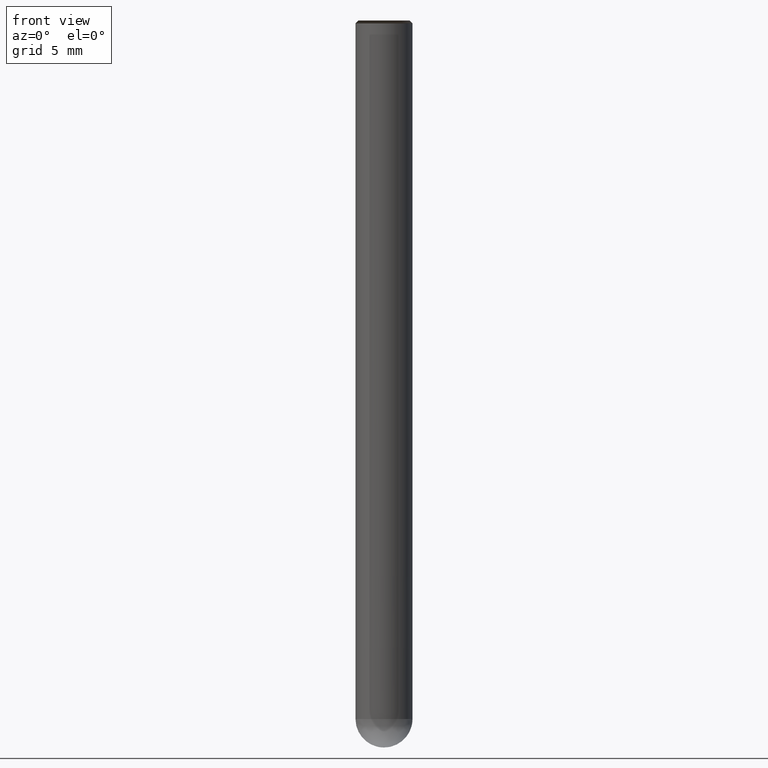
[diagram: clean part render]
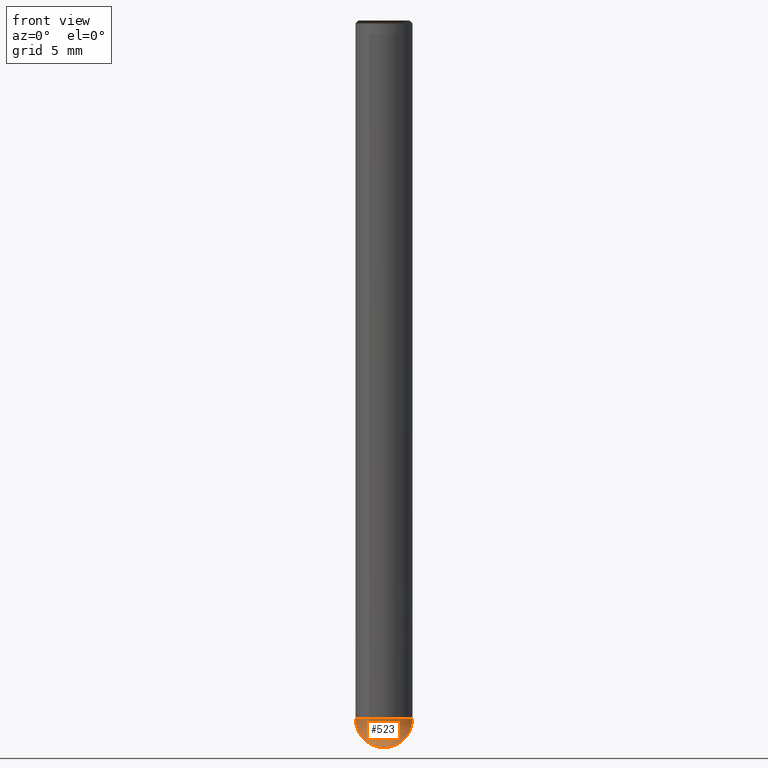
[diagram: same view with one face highlighted and labeled with its STEP entity id]
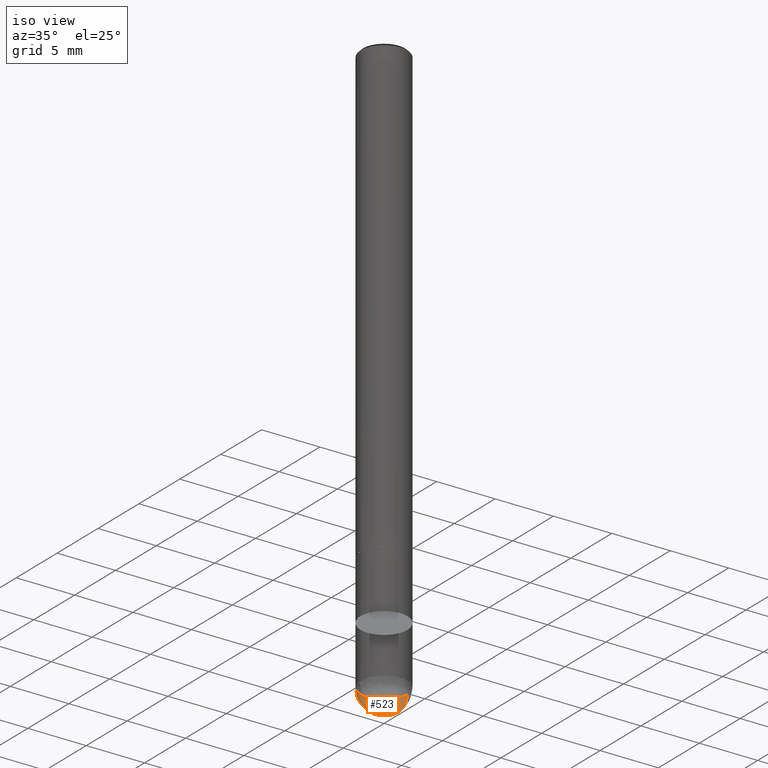
[diagram: same view with one face highlighted and labeled with its STEP entity id]
A machine part, front view. The second image highlights one B-rep face of the part: STEP entity #523.
A second angle (iso view) of the same face is appended — the face is thin or edge-on in the first view.
In plain terms, the highlighted face is a freeform B-spline surface patch.
Its self-contained STEP definition (entity closure, byte-faithful):
#399=CARTESIAN_POINT('',(0.0,0.0,-12.0));
#400=CARTESIAN_POINT('',(2.0,0.0,-12.0));
#404=CARTESIAN_POINT('',(-2.0,0.0,-12.0));
#405=CARTESIAN_POINT('',(2.0,0.0,-10.0));
#409=CARTESIAN_POINT('',(-2.0,0.0,-10.0));
#416=CARTESIAN_POINT('',(-2.0,-2.0,-12.0));
#417=CARTESIAN_POINT('',(0.0,-2.0,-12.0));
#418=CARTESIAN_POINT('',(2.0,-2.0,-12.0));
#419=CARTESIAN_POINT('',(-2.0,-2.0,-10.0));
#420=CARTESIAN_POINT('',(0.0,-2.0,-10.0));
#421=CARTESIAN_POINT('',(2.0,-2.0,-10.0));
#508=(
BOUNDED_SURFACE()
B_SPLINE_SURFACE(2,2,(
(#399,#399,#399,#399,#399),
(#404,#416,#417,#418,#400),
(#409,#419,#420,#421,#405)
), .UNSPECIFIED.,.F.,.F.,.F.)
B_SPLINE_SURFACE_WITH_KNOTS((3,3),(3,2,3),(
0.0,1.0),(
0.0,0.5,1.0), .UNSPECIFIED.)
GEOMETRIC_REPRESENTATION_ITEM()
RATIONAL_B_SPLINE_SURFACE(((1.0,0.707106781187,1.0,0.707106781187,1.0),
(0.707106781187,0.5,0.707106781187,0.5,0.707106781187),
(1.0,0.707106781187,1.0,0.707106781187,1.0)
))
REPRESENTATION_ITEM('')
SURFACE()
);
#509=(
BOUNDED_CURVE()
B_SPLINE_CURVE(2,(#405,#400,#399),.UNSPECIFIED.,.F.,.F.)
B_SPLINE_CURVE_WITH_KNOTS((3,3),
(0.0,1.0),.UNSPECIFIED.)
CURVE()
GEOMETRIC_REPRESENTATION_ITEM()
RATIONAL_B_SPLINE_CURVE((1.0,0.707106781187,1.0))
REPRESENTATION_ITEM('')
);
#510=(
BOUNDED_CURVE()
B_SPLINE_CURVE(2,(#399,#404,#409),.UNSPECIFIED.,.F.,.F.)
B_SPLINE_CURVE_WITH_KNOTS((3,3),
(0.0,1.0),.UNSPECIFIED.)
CURVE()
GEOMETRIC_REPRESENTATION_ITEM()
RATIONAL_B_SPLINE_CURVE((1.0,0.707106781187,1.0))
REPRESENTATION_ITEM('')
);
#511=(
BOUNDED_CURVE()
B_SPLINE_CURVE(2,(#409,#419,#420,#421,#405),.UNSPECIFIED.,.F.,.F.)
B_SPLINE_CURVE_WITH_KNOTS((3,2,3),
(0.0,0.5,1.0),.UNSPECIFIED.)
CURVE()
GEOMETRIC_REPRESENTATION_ITEM()
RATIONAL_B_SPLINE_CURVE((1.0,0.707106781187,1.0,0.707106781187,1.0))
REPRESENTATION_ITEM('')
);
#512=VERTEX_POINT('',#399);
#513=VERTEX_POINT('',#405);
#514=VERTEX_POINT('',#409);
#515=EDGE_CURVE('',#513,#512,#509,.T.);
#516=EDGE_CURVE('',#512,#514,#510,.T.);
#517=EDGE_CURVE('',#514,#513,#511,.T.);
#518=ORIENTED_EDGE('',*,*,#515,.T.);
#519=ORIENTED_EDGE('',*,*,#516,.T.);
#520=ORIENTED_EDGE('',*,*,#517,.T.);
#521=EDGE_LOOP('',(#518,#519,#520));
#522=FACE_OUTER_BOUND('',#521,.T.);
#523=ADVANCED_FACE('',(#522),#508,.T.);